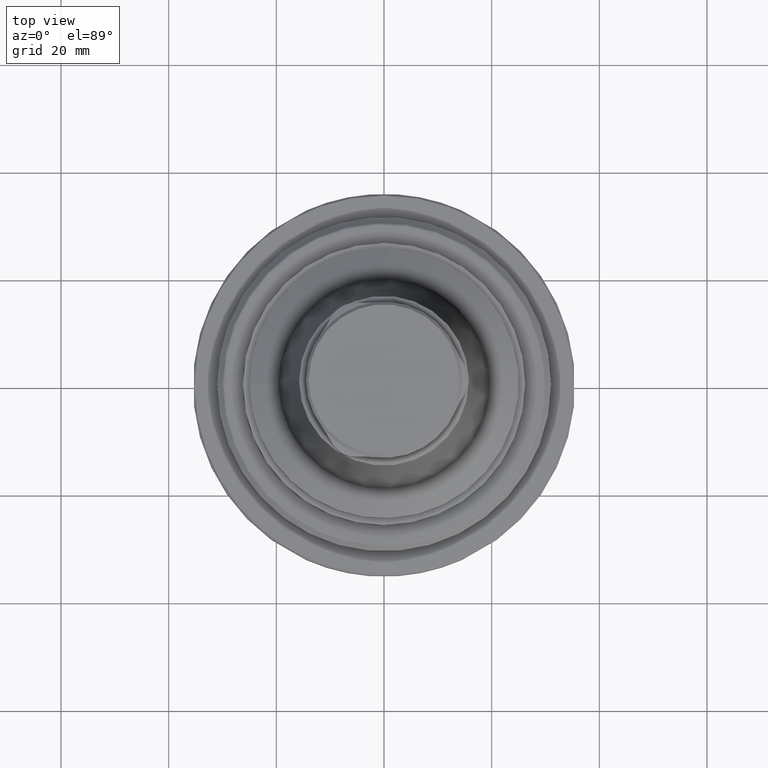
[diagram: clean part render]
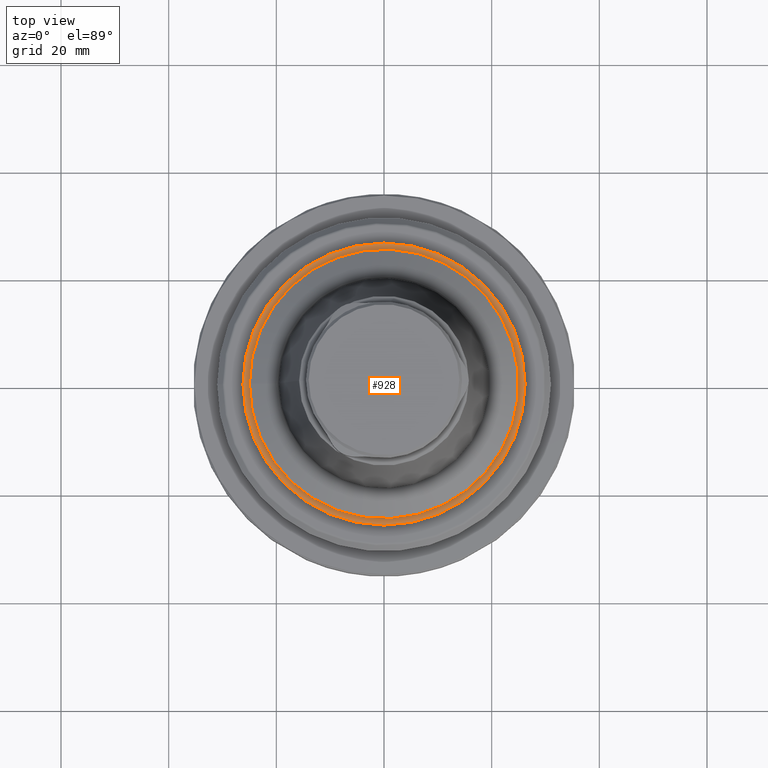
[diagram: same view with one face highlighted and labeled with its STEP entity id]
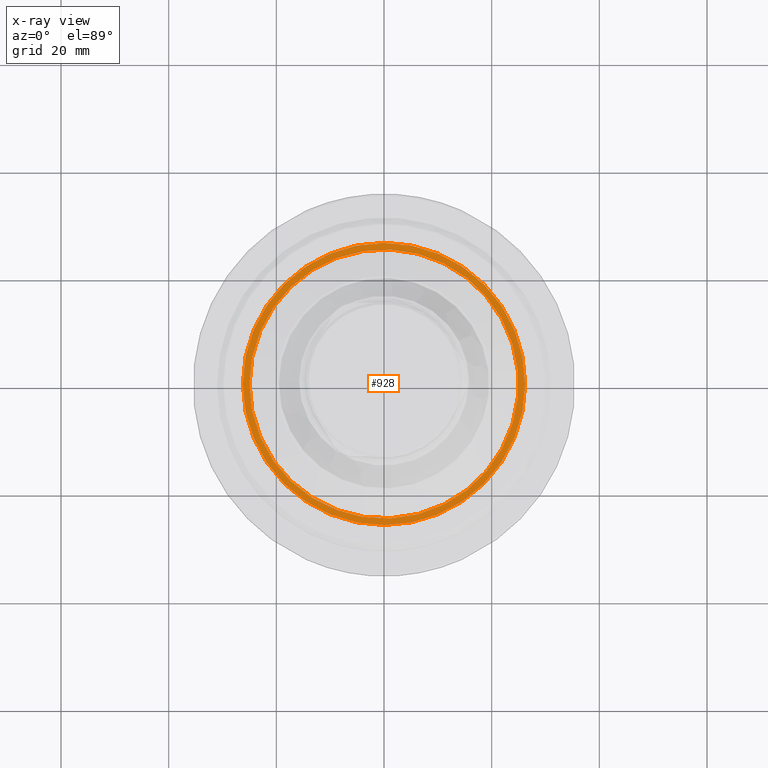
[diagram: x-ray of the same camera — body ghosted, the highlighted face saturated]
A machine part, top view. The second image highlights one B-rep face of the part: STEP entity #928.
The next image is the same camera in x-ray: the body ghosted, the highlighted face saturated — about 0% of this face is hidden behind the body in this view.
In plain terms, the highlighted planar face has unit normal (0, -0, 1).
Its self-contained STEP definition (entity closure, byte-faithful):
#288=ORIENTED_EDGE('',*,*,#480,.F.);
#289=ORIENTED_EDGE('',*,*,#479,.T.);
#479=EDGE_CURVE('',#586,#586,#657,.T.);
#480=EDGE_CURVE('',#587,#587,#658,.T.);
#586=VERTEX_POINT('',#1631);
#587=VERTEX_POINT('',#1634);
#657=CIRCLE('',#1031,25.);
#658=CIRCLE('',#1033,26.2);
#733=EDGE_LOOP('',(#288));
#734=EDGE_LOOP('',(#289));
#829=FACE_BOUND('',#733,.T.);
#830=FACE_BOUND('',#734,.T.);
#883=PLANE('',#1032);
#928=ADVANCED_FACE('',(#829,#830),#883,.T.);
#1031=AXIS2_PLACEMENT_3D('',#1630,#1221,#1222);
#1032=AXIS2_PLACEMENT_3D('',#1632,#1223,#1224);
#1033=AXIS2_PLACEMENT_3D('',#1633,#1225,#1226);
#1221=DIRECTION('',(-4.38328612912168E-16,-8.51929322185263E-24,-1.));
#1222=DIRECTION('',(-1.,9.77164313006873E-16,4.38328610599545E-16));
#1223=DIRECTION('',(5.5264198129461E-16,-6.90472036344684E-17,1.));
#1224=DIRECTION('',(-3.55103316543315E-16,1.,6.90471738482395E-17));
#1225=DIRECTION('',(-5.5264198129461E-16,6.90472036344684E-17,-1.));
#1226=DIRECTION('',(-1.,9.77164313006873E-16,5.58279830278911E-16));
#1630=CARTESIAN_POINT('',(-8.40375976101222E-14,-9.81645350959161E-14,8.50000000000001));
#1631=CARTESIAN_POINT('',(-25.0000000000001,-7.37354272707442E-14,8.50000000000002));
#1632=CARTESIAN_POINT('',(-8.40375454974924E-14,-9.81718178561464E-14,8.5));
#1633=CARTESIAN_POINT('',(-8.94460880349364E-14,-9.81718178561464E-14,8.5));
#1634=CARTESIAN_POINT('',(-26.2000000000001,-7.25701128553663E-14,8.50000000000001));